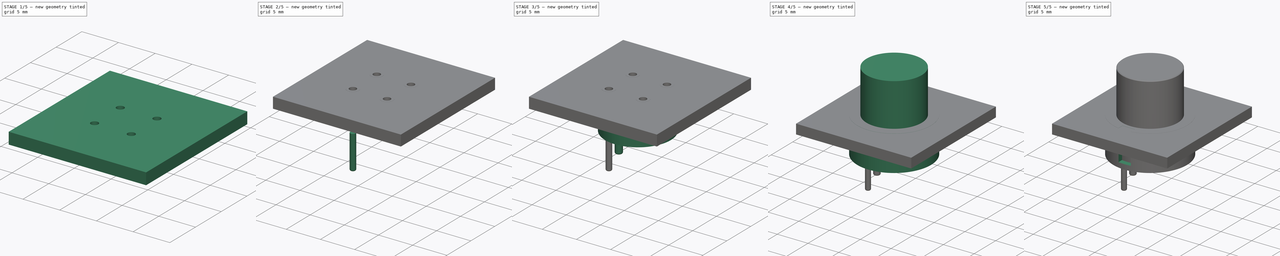
[diagram: build sequence overview — one tinted view per stage of 5, left to right]
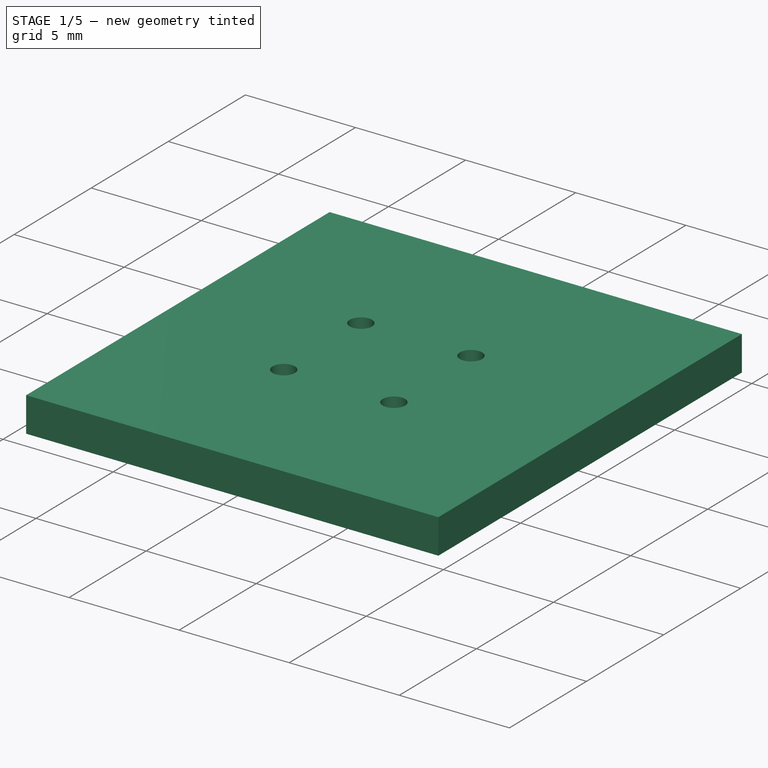
[diagram: stage 1 of 5 — iso view after this stage's code; geometry added in this stage tinted green]
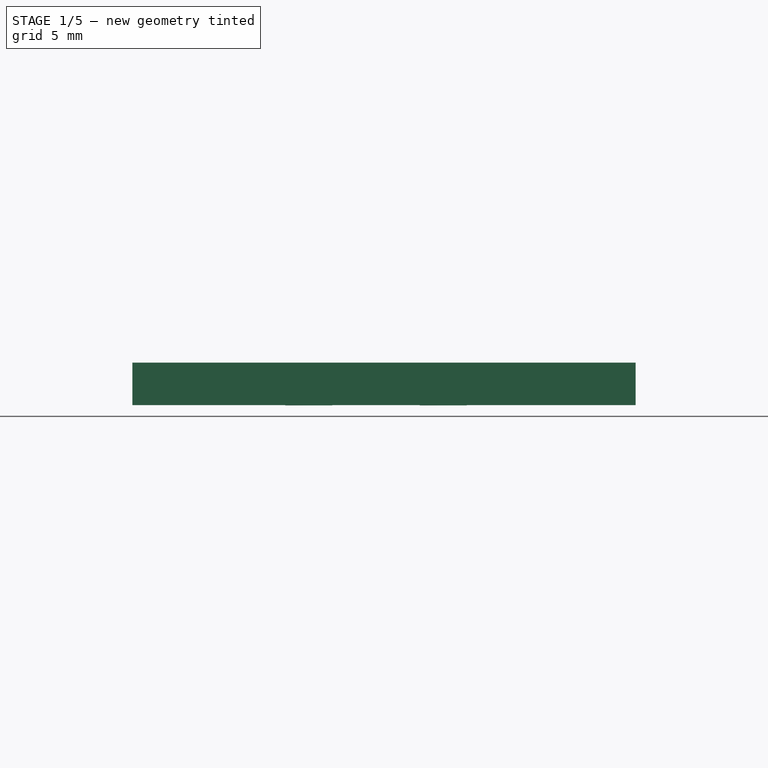
[diagram: stage 1 of 5 — front view after this stage's code; geometry added in this stage tinted green]
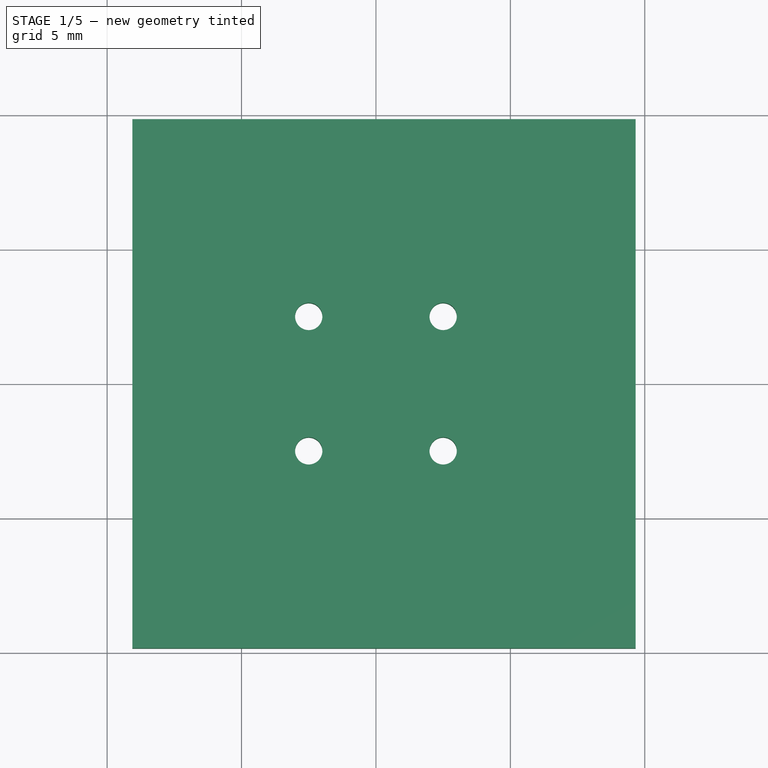
[diagram: stage 1 of 5 — top view after this stage's code; geometry added in this stage tinted green]
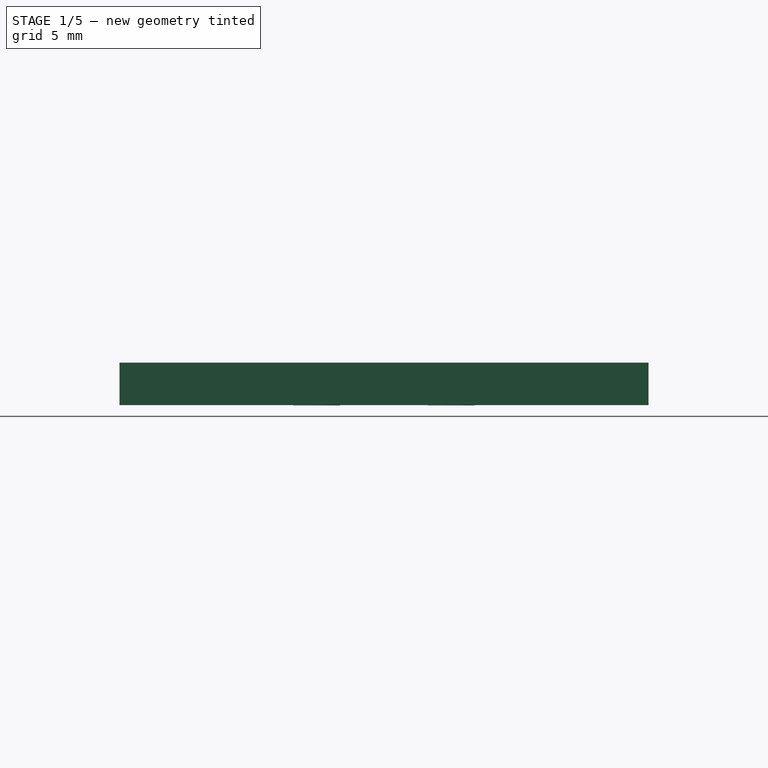
[diagram: stage 1 of 5 — right view after this stage's code; geometry added in this stage tinted green]
FCSTD DOCUMENT  (FreeCAD 0.17R13541 (Git))
Label: SW-PUSH-CK-D6R_ksu
License: All rights reserved
LicenseURL: http://fr.wikipedia.org/wiki/<copyright redacted>
objects: Sketcher::SketchObject×8, PartDesign::Pad×5, Part::FeaturePython×5, Part::Feature×4, PartDesign::Pocket×3, PartDesign::Body×3, PartDesign::ShapeBinder×2, PartDesign::Fillet×2, PartDesign::Chamfer×1, App::DocumentObjectGroup×1
note: 41 computed .brp shape members not serialized (recipe doc carries the construction recipe); baked Part::Feature solids carry a one-line shape summary decoded from their .brp

FEATURE [Part::FeaturePython] BotPads  # a2plus imported part (geometry in sourceFile) (typed FeaturePython)
  fixedPosition = true
FEATURE [Part::FeaturePython] THPs  label="PTHs"  # a2plus imported part (geometry in sourceFile) (typed FeaturePython)
  fixedPosition = true
FEATURE [Part::FeaturePython] newPCB  label="Pcb"  # a2plus imported part (geometry in sourceFile) (typed FeaturePython)
  fixedPosition = true
FEATURE [App::DocumentObjectGroup] SW_PUSH_D6R_fp
  Group = -> [Filk_lines,TopPads,BotPads,THPs,newPCB]
FEATURE [Part::Feature] Shape  label="SW-PUSH-D6R-R"
  shape: bbox 11.4 x 12 x 17.8 mm, 43 faces (baked)
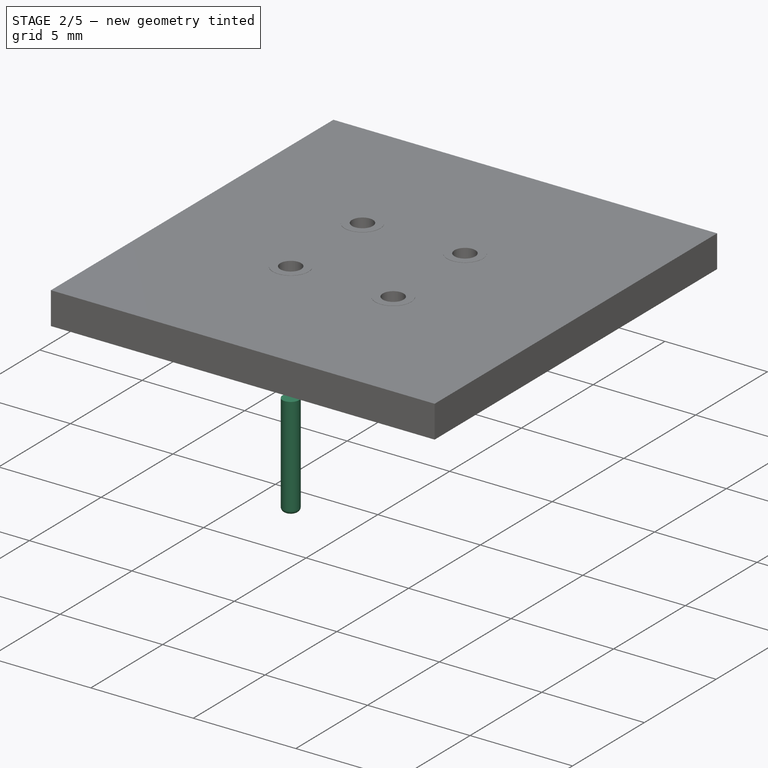
[diagram: stage 2 of 5 — iso view after this stage's code; geometry added in this stage tinted green]
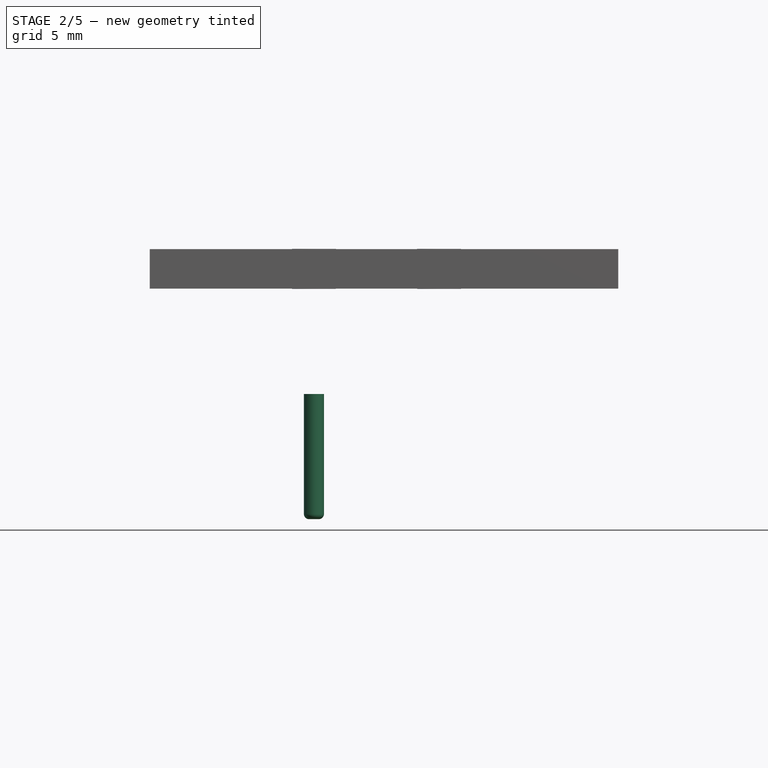
[diagram: stage 2 of 5 — front view after this stage's code; geometry added in this stage tinted green]
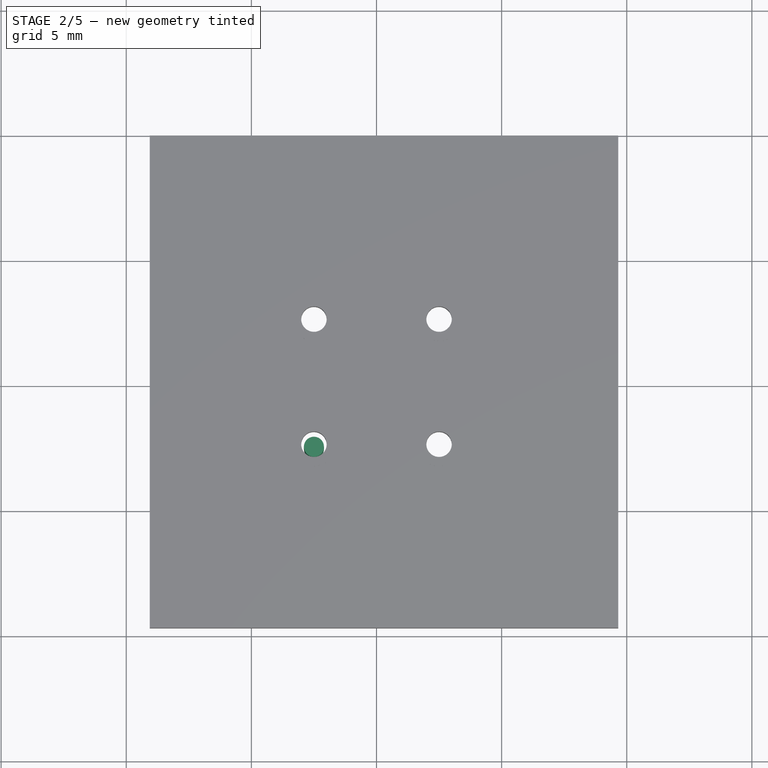
[diagram: stage 2 of 5 — top view after this stage's code; geometry added in this stage tinted green]
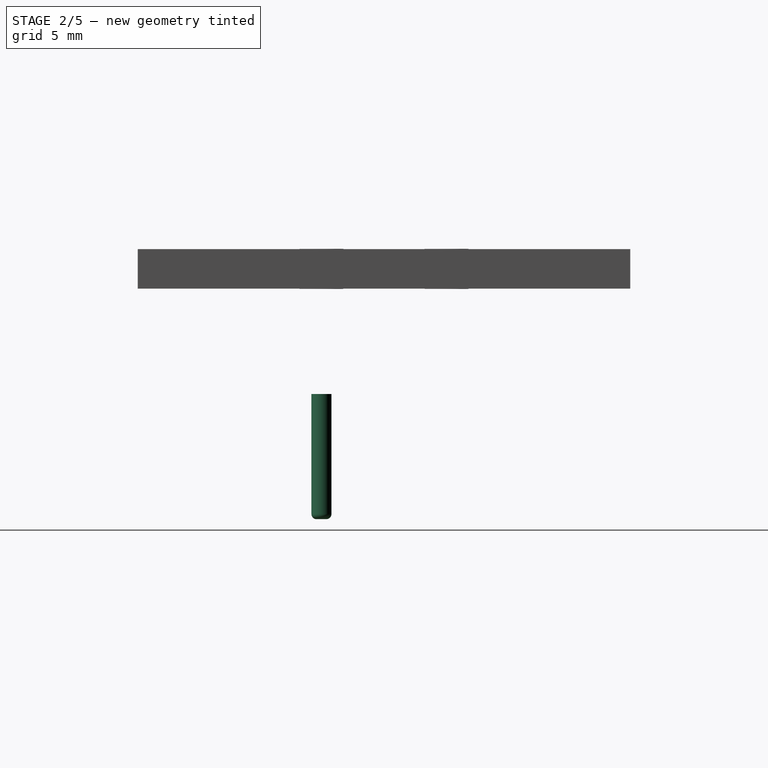
[diagram: stage 2 of 5 — right view after this stage's code; geometry added in this stage tinted green]
FEATURE [PartDesign::Body] Body001
  Group = -> [CopyPocket002,Sketch005,Pad002,Sketch006,Pad003,Fillet]
  Origin = -> Origin001
  Tip = -> Fillet
FEATURE [PartDesign::ShapeBinder] CopyFillet
FEATURE [Sketcher::SketchObject] Sketch007
  MapMode = 5
  Placement = pos=(0,0,-5.8) rot=(1,0,0;3.14159rad)
  Support = -> [CopyFillet]
  sketch-geometry (1):
    g0: Circle CenterX=-2.5 CenterY=2.5 CenterZ=0 NormalX=0 NormalY=0 NormalZ=1 AngleXU=0 Radius=0.4
  constraints (3):
    c: Radius(g0) = 0.4
    c: DistanceX(g0,g-1) = 2.5
    c: DistanceY(g-1,g0) = 2.5
FEATURE [PartDesign::Pad] Pad004
  Length = 5
  Length2 = 100
  Profile = -> Sketch007
  Type = 0
FEATURE [PartDesign::Fillet] Fillet001
  Base = -> Pad004 [Edge3]
  BaseFeature = -> Pad004
  Radius = 0.2
FEATURE [PartDesign::Body] Body002
  Group = -> [CopyFillet,Sketch007,Pad004,Fillet001]
  Origin = -> Origin002
  Tip = -> Fillet001
FEATURE [Part::Feature] Body002001  label="Body003"
  Placement = pos=(5,0,0) rot=(0,0,1;0rad)
  shape: bbox 0.8659 x 0.8659 x 5 mm, 4 faces (baked)
FEATURE [Part::Feature] Body002002  label="Body004"
  Placement = pos=(0,5,0) rot=(0,0,1;0rad)
  shape: bbox 0.8659 x 0.8659 x 5 mm, 4 faces (baked)
FEATURE [Part::Feature] Body002001001  label="Body005"
  Placement = pos=(5,5,0) rot=(0,0,1;0rad)
  shape: bbox 0.8659 x 0.8659 x 5 mm, 4 faces (baked)
FEATURE [Part::FeaturePython] Filk_lines  label="FrontSilk"  # a2plus imported part (geometry in sourceFile) (typed FeaturePython)
  fixedPosition = true
FEATURE [Part::FeaturePython] TopPads  # a2plus imported part (geometry in sourceFile) (typed FeaturePython)
  fixedPosition = true
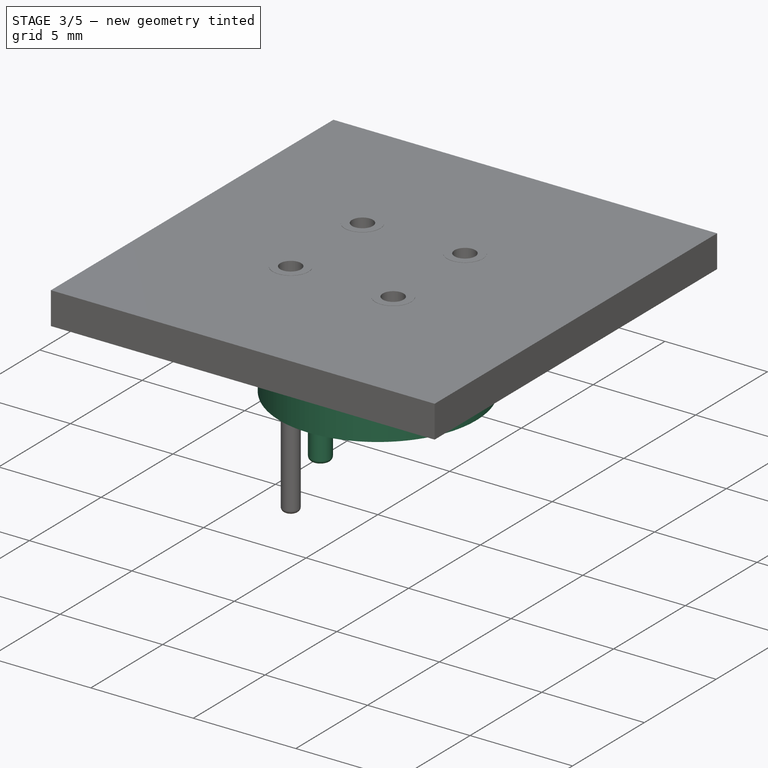
[diagram: stage 3 of 5 — iso view after this stage's code; geometry added in this stage tinted green]
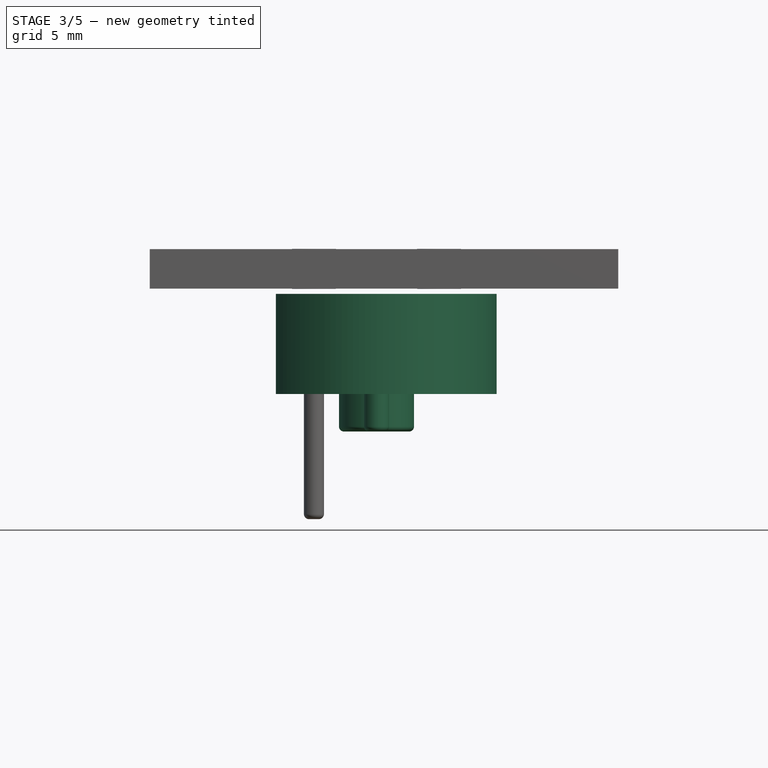
[diagram: stage 3 of 5 — front view after this stage's code; geometry added in this stage tinted green]
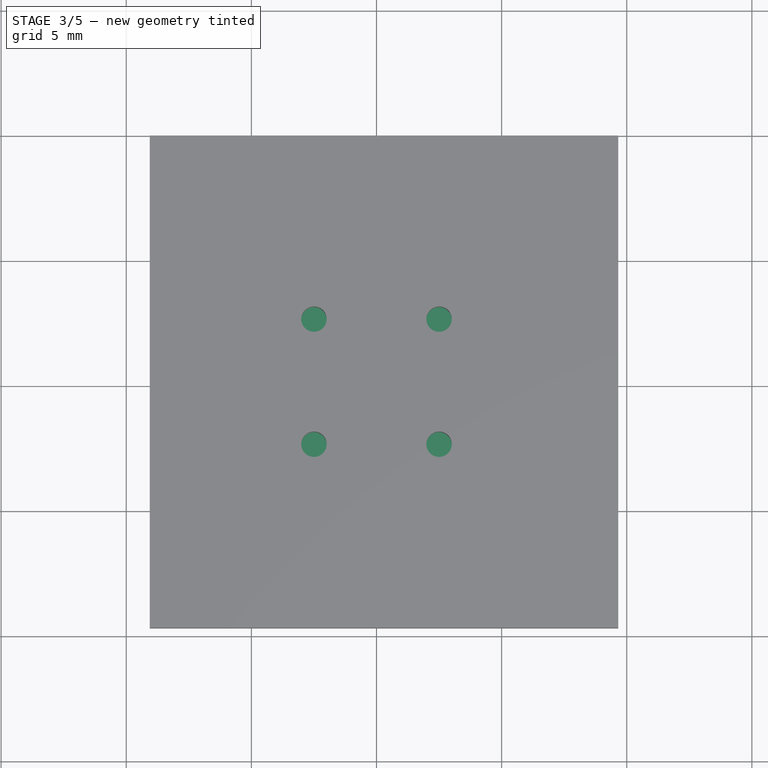
[diagram: stage 3 of 5 — top view after this stage's code; geometry added in this stage tinted green]
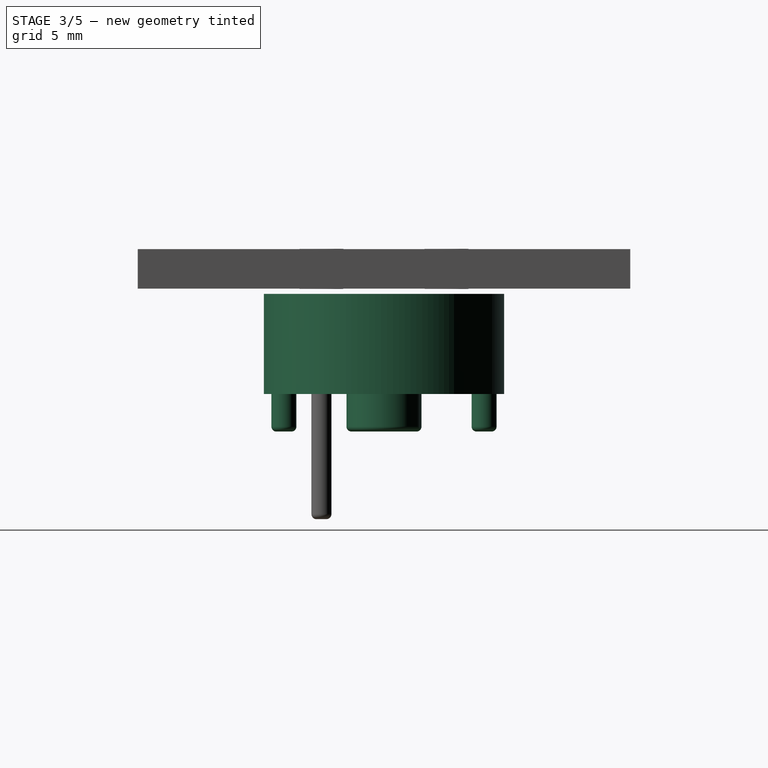
[diagram: stage 3 of 5 — right view after this stage's code; geometry added in this stage tinted green]
FEATURE [PartDesign::Body] Body
  Group = -> [Sketch,Pad,Sketch001,Pad001,Sketch002,Pocket,Chamfer,Sketch003,Pocket001,Sketch004,Pocket002]
  Origin = -> Origin
  Tip = -> Pocket002
FEATURE [PartDesign::ShapeBinder] CopyPocket002
FEATURE [Sketcher::SketchObject] Sketch005
  MapMode = 5
  Placement = pos=(0,0,-1.8) rot=(1,0,0;3.14159rad)
  Support = -> [CopyPocket002]
  sketch-geometry (2):
    g0: ArcOfCircle CenterX=0 CenterY=0 CenterZ=0 NormalX=0 NormalY=0 NormalZ=1 AngleXU=0 Radius=4.8 StartAngle=3.72022 EndAngle=8.84615
    g1: LineSegment StartX=-4.01863 StartY=2.625 StartZ=0 EndX=-4.01863 EndY=-2.625 EndZ=0
  constraints (7):
    c: Coincident(g0,g-1)
    c: Coincident(g1,g0)
    c: Coincident(g1,g0)
    c: Vertical(g1)
    c: Symmetric(g0,g0,g-1)
    c: Radius(g0) = 4.8
    c: DistanceY(g1,g1) = 5.25
FEATURE [PartDesign::Pad] Pad002
  Length = 4
  Length2 = 100
  Profile = -> Sketch005
  Type = 0
FEATURE [Sketcher::SketchObject] Sketch006
  MapMode = 5
  Placement = pos=(0,0,-5.8) rot=(1,0,0;3.14159rad)
  Support = -> [Pad002]
  sketch-geometry (3):
    g0: Circle CenterX=0 CenterY=0 CenterZ=0 NormalX=0 NormalY=0 NormalZ=1 AngleXU=0 Radius=1.5
    g1: Circle CenterX=0 CenterY=4 CenterZ=0 NormalX=0 NormalY=0 NormalZ=1 AngleXU=0 Radius=0.5
    g2: Circle CenterX=0 CenterY=-4 CenterZ=0 NormalX=0 NormalY=0 NormalZ=1 AngleXU=0 Radius=0.5
  constraints (7):
    c: Radius(g0) = 1.5
    c: Coincident(g0,g-1)
    c: PointOnObject(g1,g-2)
    c: DistanceY(g-1,g1) = 4
    c: Radius(g1) = 0.5
    c: Radius(g2) = 0.5
    c: Symmetric(g2,g1,g-1)
FEATURE [PartDesign::Pad] Pad003
  BaseFeature = -> Pad002
  Length = 1.5
  Length2 = 100
  Profile = -> Sketch006
  Type = 0
FEATURE [PartDesign::Fillet] Fillet
  Base = -> Pad003 [Edge11,Edge15,Edge13]
  BaseFeature = -> Pad003
  Radius = 0.2
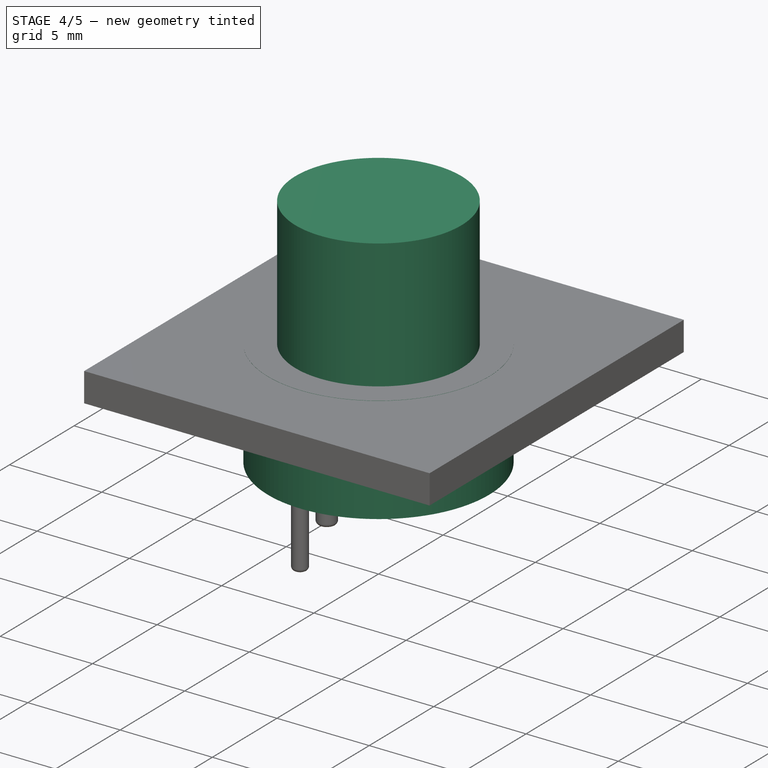
[diagram: stage 4 of 5 — iso view after this stage's code; geometry added in this stage tinted green]
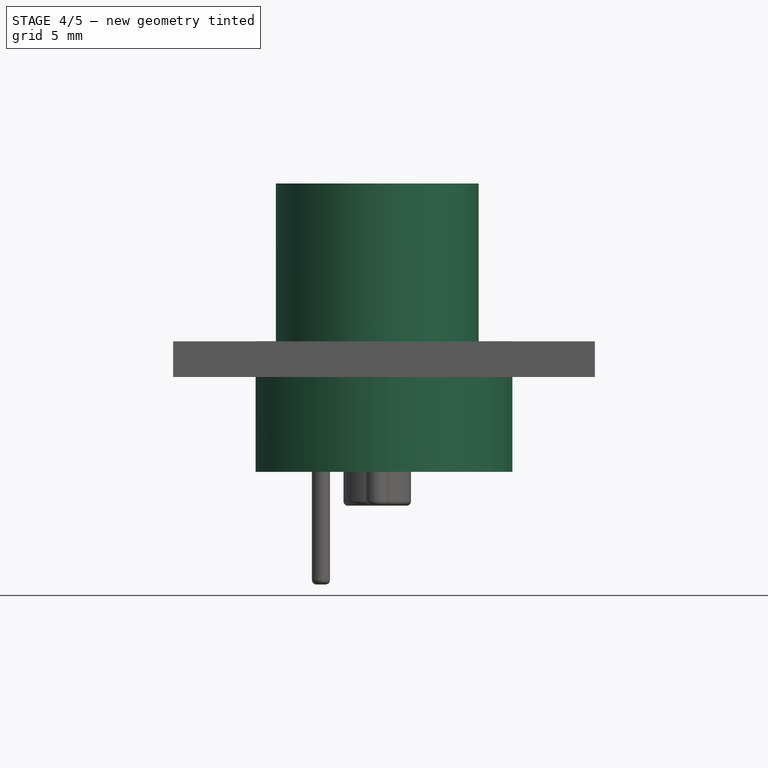
[diagram: stage 4 of 5 — front view after this stage's code; geometry added in this stage tinted green]
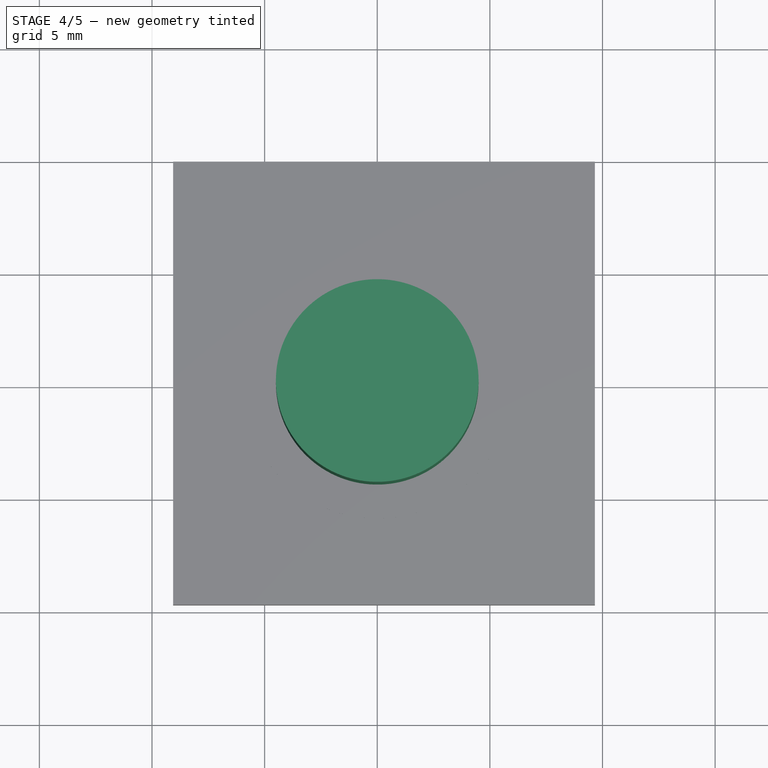
[diagram: stage 4 of 5 — top view after this stage's code; geometry added in this stage tinted green]
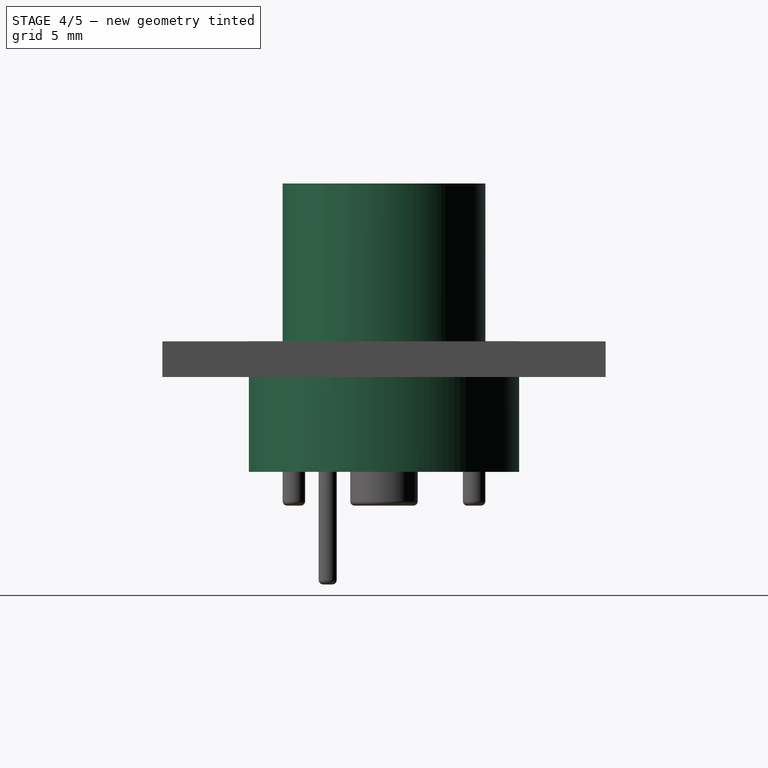
[diagram: stage 4 of 5 — right view after this stage's code; geometry added in this stage tinted green]
FEATURE [Sketcher::SketchObject] Sketch
  MapMode = 5
  Support = -> [XY_Plane]
  sketch-geometry (1):
    g0: Circle CenterX=0 CenterY=0 CenterZ=0 NormalX=0 NormalY=0 NormalZ=1 AngleXU=0 Radius=4.5
  constraints (2):
    c: Coincident(g0,g-1)
    c: Radius(g0) = 4.5
FEATURE [PartDesign::Pad] Pad
  Length = 7
  Length2 = 100
  Profile = -> Sketch
  Type = 0
FEATURE [Sketcher::SketchObject] Sketch001
  MapMode = 5
  Placement = pos=(0,0,0) rot=(1,0,0;3.14159rad)
  Support = -> [Pad]
  sketch-geometry (1):
    g0: Circle CenterX=0 CenterY=0 CenterZ=0 NormalX=0 NormalY=0 NormalZ=1 AngleXU=0 Radius=6
  constraints (2):
    c: Coincident(g0,g-1)
    c: Radius(g0) = 6
FEATURE [PartDesign::Pad] Pad001
  BaseFeature = -> Pad
  Length = 5.8
  Length2 = 100
  Profile = -> Sketch001
  Type = 0
FEATURE [Sketcher::SketchObject] Sketch002
  MapMode = 5
  Support = -> [Pad001]
  expr: Constraints[11] = 6 - 0.59999999999999998
  sketch-geometry (4):
    g0: LineSegment StartX=-7.4 StartY=5 StartZ=0 EndX=-5.4 EndY=5 EndZ=0
    g1: LineSegment StartX=-5.4 StartY=5 StartZ=0 EndX=-5.4 EndY=-5 EndZ=0
    g2: LineSegment StartX=-5.4 StartY=-5 StartZ=0 EndX=-7.4 EndY=-5 EndZ=0
    g3: LineSegment StartX=-7.4 StartY=-5 StartZ=0 EndX=-7.4 EndY=5 EndZ=0
  constraints (12):
    c: Coincident(g0,g1)
    c: Coincident(g1,g2)
    c: Coincident(g2,g3)
    c: Coincident(g3,g0)
    c: Horizontal(g0)
    c: Horizontal(g2)
    c: Vertical(g1)
    c: Vertical(g3)
    c: DistanceY(g3,g3) = 10
    c: DistanceX(g0,g0) = 2
    c: Symmetric(g0,g1,g-1)
    c: DistanceX(g0,g-1) = 5.4
FEATURE [PartDesign::Pocket] Pocket
  BaseFeature = -> Pad001
  Length = 7
  Length2 = 100
  Profile = -> Sketch002
  Type = 0
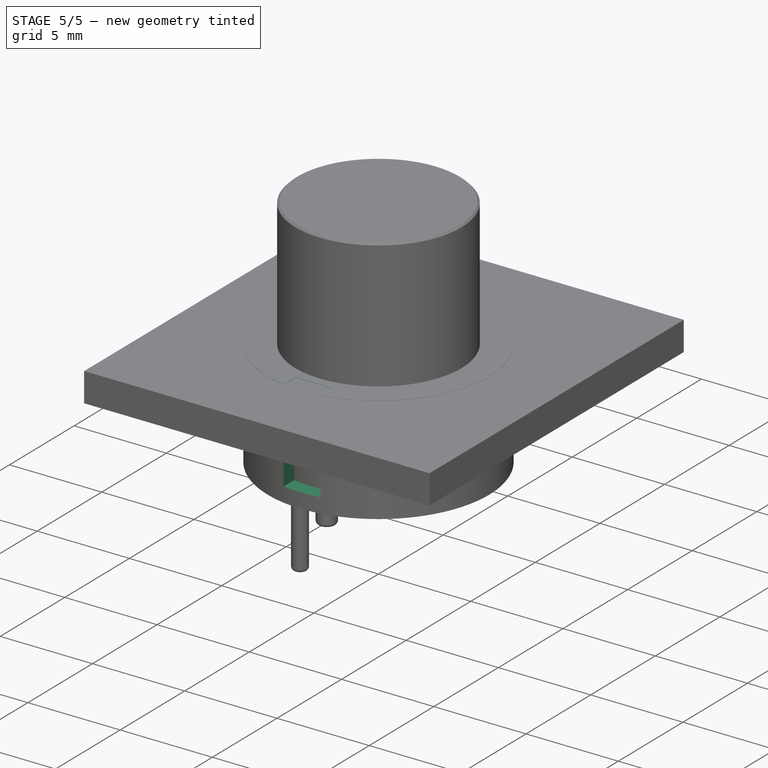
[diagram: stage 5 of 5 — iso view after this stage's code; geometry added in this stage tinted green]
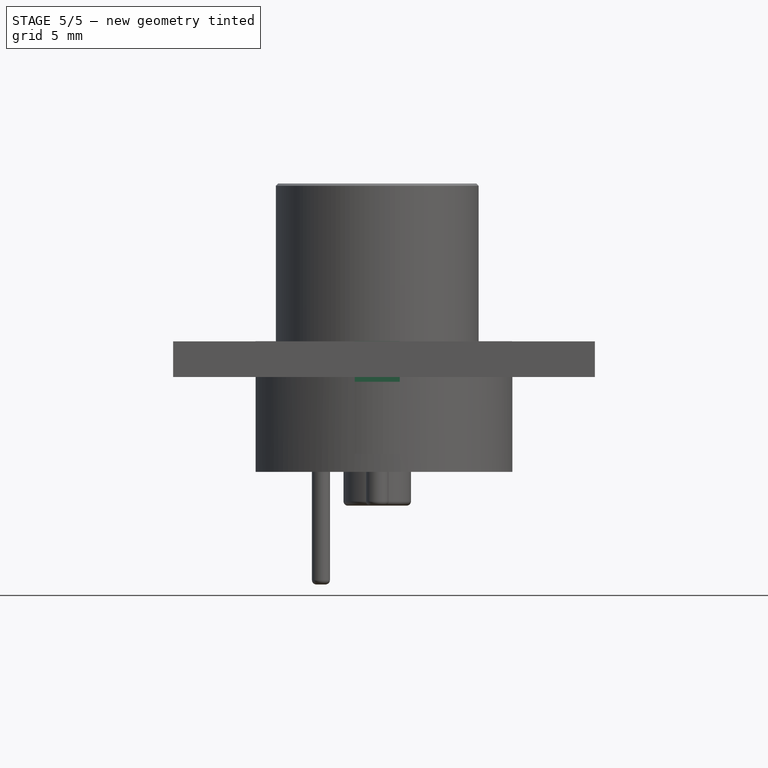
[diagram: stage 5 of 5 — front view after this stage's code; geometry added in this stage tinted green]
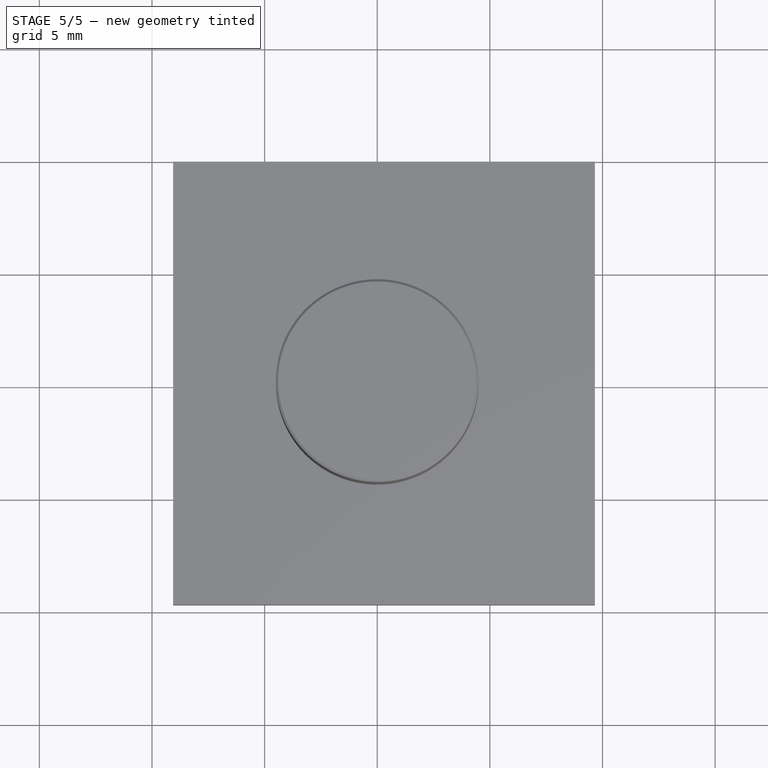
[diagram: stage 5 of 5 — top view after this stage's code; geometry added in this stage tinted green]
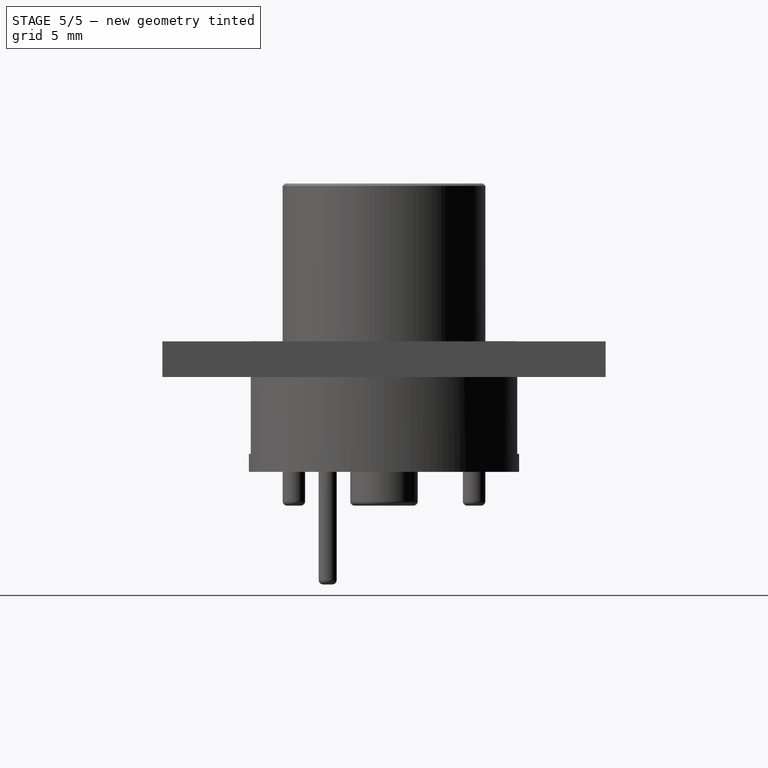
[diagram: stage 5 of 5 — right view after this stage's code; geometry added in this stage tinted green]
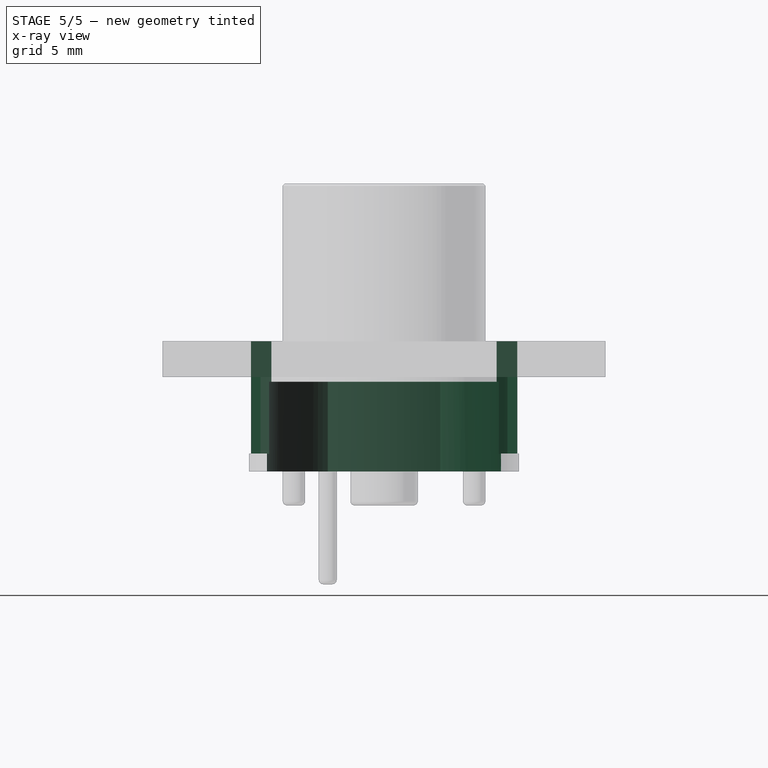
[diagram: stage 5 of 5 — x-ray composite at the right view; earlier geometry ghosted, this stage's added geometry solid]
FEATURE [PartDesign::Chamfer] Chamfer
  Base = -> Pocket [Edge12]
  BaseFeature = -> Pocket
  Size = 0.1
FEATURE [Sketcher::SketchObject] Sketch003
  MapMode = 5
  Support = -> [Chamfer]
  sketch-geometry (8):
    g0: LineSegment StartX=-1 StartY=7 StartZ=0 EndX=1 EndY=7 EndZ=0
    g1: LineSegment StartX=1 StartY=7 StartZ=0 EndX=1 EndY=5 EndZ=0
    g2: LineSegment StartX=1 StartY=5 StartZ=0 EndX=-1 EndY=5 EndZ=0
    g3: LineSegment StartX=-1 StartY=5 StartZ=0 EndX=-1 EndY=7 EndZ=0
    g4: LineSegment StartX=1 StartY=-7 StartZ=0 EndX=-1 EndY=-7 EndZ=0
    g5: LineSegment StartX=-1 StartY=-7 StartZ=0 EndX=-1 EndY=-5 EndZ=0
    g6: LineSegment StartX=-1 StartY=-5 StartZ=0 EndX=1 EndY=-5 EndZ=0
    g7: LineSegment StartX=1 StartY=-5 StartZ=0 EndX=1 EndY=-7 EndZ=0
  constraints (24):
    c: Coincident(g0,g1)
    c: Coincident(g1,g2)
    c: Coincident(g2,g3)
    c: Coincident(g3,g0)
    c: Horizontal(g0)
    c: Horizontal(g2)
    c: Vertical(g1)
    c: Vertical(g3)
    c: DistanceX(g0,g0) = 2
    c: DistanceY(g3,g3) = 2
    c: DistanceY(g-1,g1) = 5
    c: Symmetric(g2,g1,g-2)
    c: Coincident(g4,g5)
    c: Coincident(g5,g6)
    c: Coincident(g6,g7)
    c: Coincident(g7,g4)
    c: Horizontal(g4)
    c: Horizontal(g6)
    c: Vertical(g5)
    c: Vertical(g7)
    c: DistanceY(g5,g-1) = 5
    c: DistanceY(g5,g5) = 2
    c: Symmetric(g5,g6,g-2)
    c: DistanceX(g4,g4) = 2
FEATURE [PartDesign::Pocket] Pocket001
  BaseFeature = -> Chamfer
  Length = 5
  Length2 = 100
  Profile = -> Sketch003
  Type = 0
FEATURE [Sketcher::SketchObject] Sketch004
  MapMode = 5
  Placement = pos=(0,0,-5.8) rot=(1,0,0;3.14159rad)
  Support = -> [Pocket001]
  sketch-geometry (2):
    g0: ArcOfCircle CenterX=0 CenterY=0 CenterZ=0 NormalX=0 NormalY=0 NormalZ=1 AngleXU=0 Radius=5.2 StartAngle=3.64312 EndAngle=8.92325
    g1: LineSegment StartX=-4.55961 StartY=2.5 StartZ=0 EndX=-4.55961 EndY=-2.5 EndZ=0
  constraints (7):
    c: Coincident(g0,g-1)
    c: Symmetric(g0,g0,g-1)
    c: Radius(g0) = 5.2
    c: Coincident(g1,g0)
    c: Coincident(g1,g0)
    c: Vertical(g1)
    c: DistanceY(g1,g1) = 5
FEATURE [PartDesign::Pocket] Pocket002
  BaseFeature = -> Pocket001
  Length = 4
  Length2 = 100
  Profile = -> Sketch004
  Type = 0
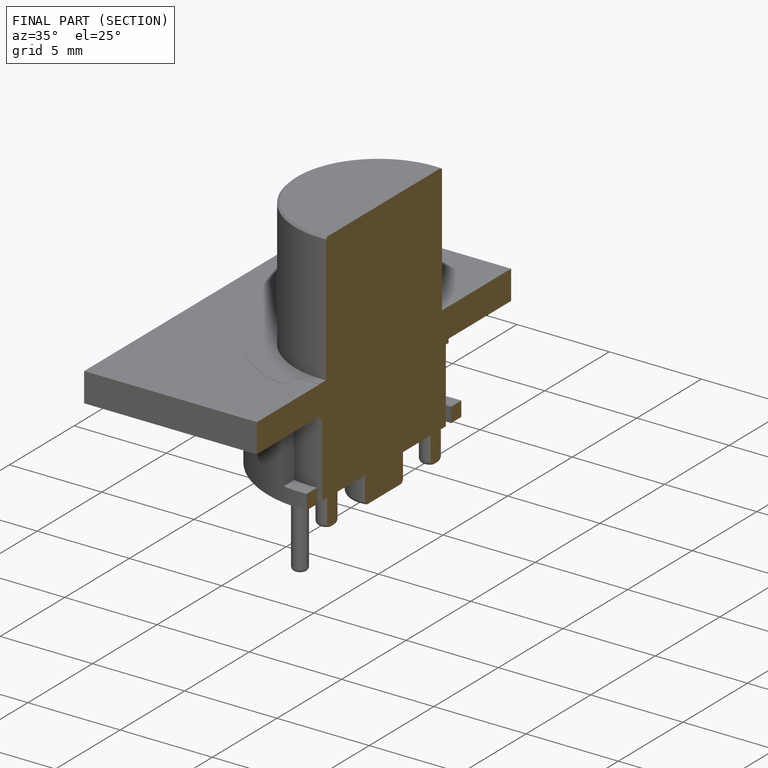
[diagram: finished part — half-section view (interior)]
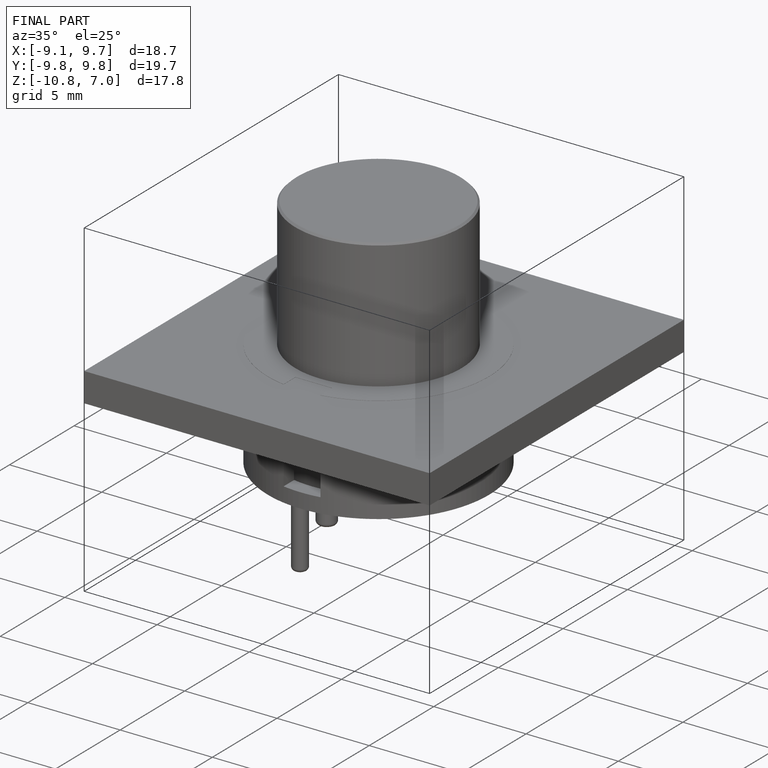
[diagram: finished part — iso view with bounding-box wireframe]
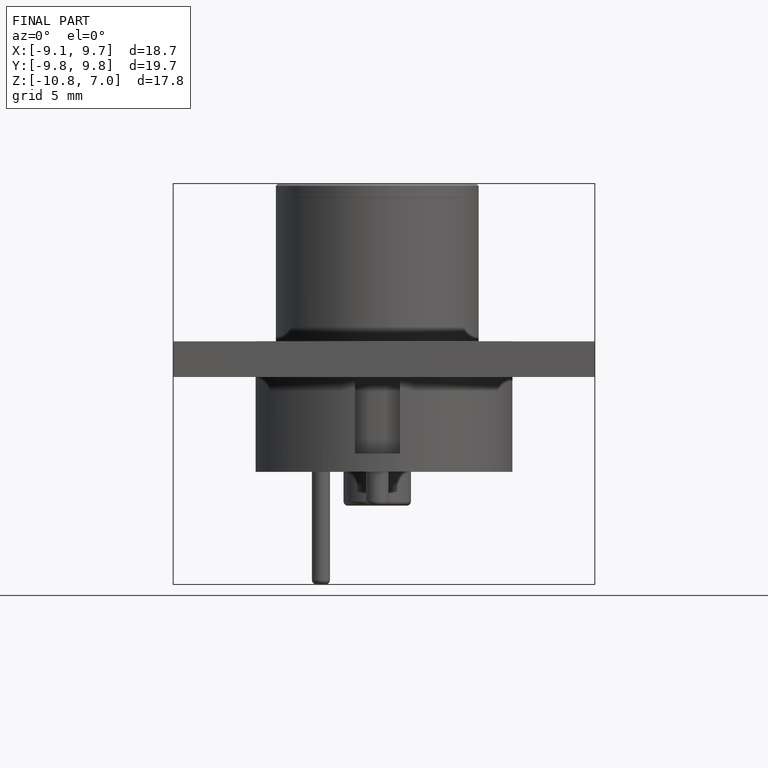
[diagram: finished part — front view with bounding-box wireframe]
